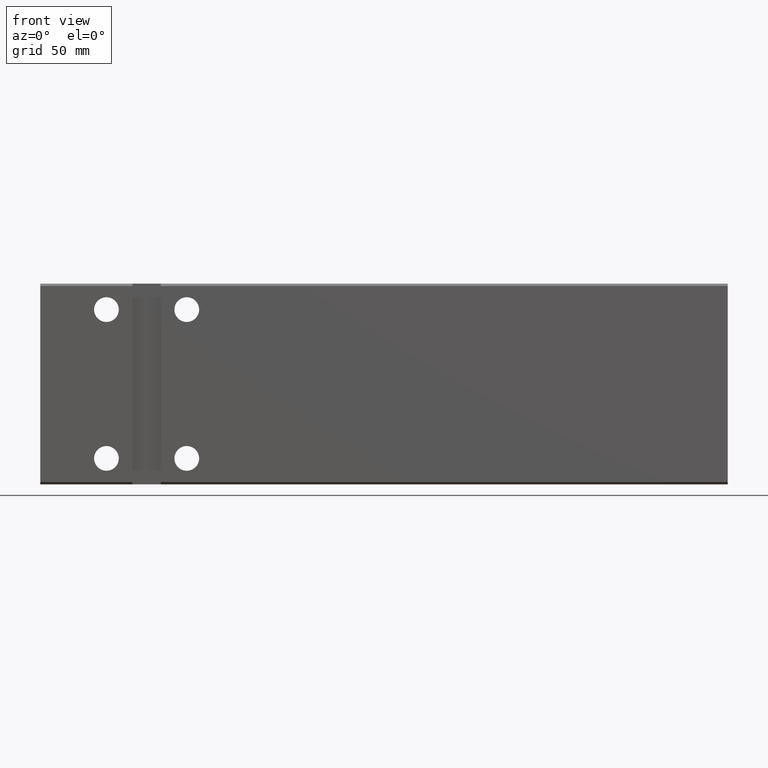
[diagram: clean part render]
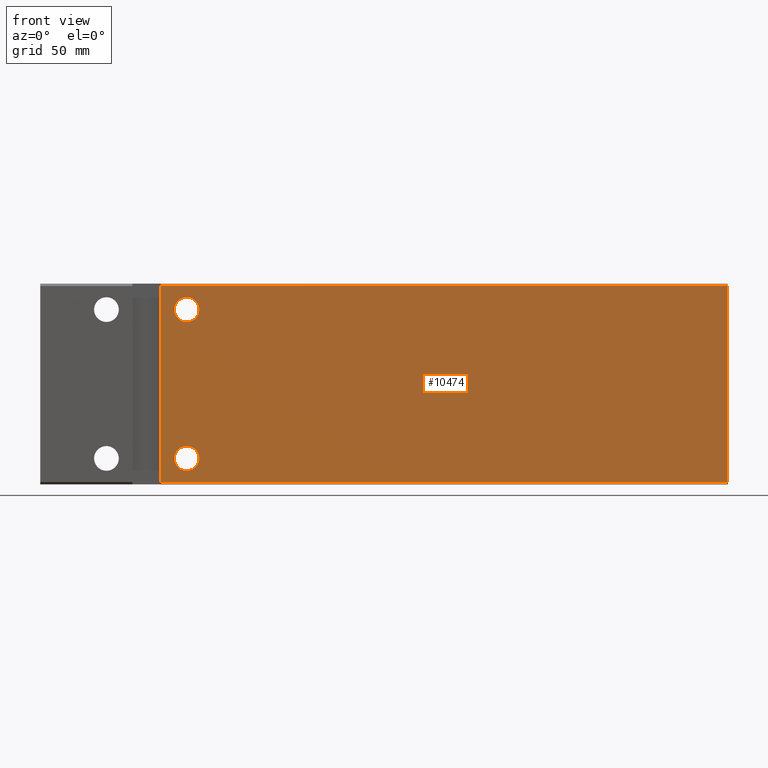
[diagram: same view with one face highlighted and labeled with its STEP entity id]
A machine part, front view. The second image highlights one B-rep face of the part: STEP entity #10474.
In plain terms, the highlighted planar face has unit normal (-0, 1, 0).
Its self-contained STEP definition (entity closure, byte-faithful):
#2074 = CARTESIAN_POINT ( 'NONE',  ( 62.00000000000000711, -31.50000000000000000, -31.50000000000000000 ) ) ;
#2233 = CARTESIAN_POINT ( 'NONE',  ( 291.0000000000000000, -31.50000000000000000, -41.50000000000000711 ) ) ;
#2432 = LINE ( 'NONE', #2233, #29851 ) ;
#2816 = DIRECTION ( 'NONE',  ( -3.265361837132813093E-16, -0.000000000000000000, 1.000000000000000000 ) ) ;
#3139 = AXIS2_PLACEMENT_3D ( 'NONE', #29336, #10279, #6345 ) ;
#3451 = DIRECTION ( 'NONE',  ( 0.000000000000000000, -1.000000000000000000, -0.000000000000000000 ) ) ;
#3910 = CARTESIAN_POINT ( 'NONE',  ( 291.0000000000000000, -31.50000000000000000, 41.49999999999999289 ) ) ;
#4350 = LINE ( 'NONE', #29410, #14008 ) ;
#4474 = VERTEX_POINT ( 'NONE', #18477 ) ;
#5000 = ORIENTED_EDGE ( 'NONE', *, *, #13221, .F. ) ;
#5068 = EDGE_LOOP ( 'NONE', ( #8071, #21541 ) ) ;
#5072 = AXIS2_PLACEMENT_3D ( 'NONE', #20670, #7627, #17162 ) ;
#5157 = EDGE_CURVE ( 'NONE', #4474, #20910, #24467, .T. ) ;
#5331 = VECTOR ( 'NONE', #29593, 1000.000000000000000 ) ;
#6340 = CARTESIAN_POINT ( 'NONE',  ( 291.0000000000000000, -31.50000000000000000, 41.49999999999999289 ) ) ;
#6345 = DIRECTION ( 'NONE',  ( 0.000000000000000000, -0.000000000000000000, 1.000000000000000000 ) ) ;
#7627 = DIRECTION ( 'NONE',  ( 0.000000000000000000, -1.000000000000000000, -0.000000000000000000 ) ) ;
#8071 = ORIENTED_EDGE ( 'NONE', *, *, #14726, .T. ) ;
#8681 = EDGE_CURVE ( 'NONE', #19785, #31767, #31180, .T. ) ;
#9042 = CIRCLE ( 'NONE', #5072, 5.250000000000004441 ) ;
#9093 = DIRECTION ( 'NONE',  ( -0.000000000000000000, 1.000000000000000000, 0.000000000000000000 ) ) ;
#9581 = EDGE_CURVE ( 'NONE', #20910, #4474, #9042, .T. ) ;
#10279 = DIRECTION ( 'NONE',  ( -0.000000000000000000, 1.000000000000000000, 0.000000000000000000 ) ) ;
#10474 = ADVANCED_FACE ( 'NONE', ( #34927, #35540, #19600 ), #25815, .F. ) ;
#12425 = DIRECTION ( 'NONE',  ( -0.000000000000000000, 1.000000000000000000, 0.000000000000000000 ) ) ;
#13221 = EDGE_CURVE ( 'NONE', #24454, #35407, #17167, .T. ) ;
#13431 = EDGE_CURVE ( 'NONE', #35407, #19785, #2432, .T. ) ;
#13847 = CARTESIAN_POINT ( 'NONE',  ( 62.00000000000000711, -31.50000000000000000, -36.75000000000000000 ) ) ;
#14008 = VECTOR ( 'NONE', #26513, 1000.000000000000000 ) ;
#14565 = VERTEX_POINT ( 'NONE', #35450 ) ;
#14726 = EDGE_CURVE ( 'NONE', #40172, #14565, #28514, .T. ) ;
#15104 = CARTESIAN_POINT ( 'NONE',  ( 51.00000000000000000, -31.50000000000000000, 41.49999999999999289 ) ) ;
#15268 = CARTESIAN_POINT ( 'NONE',  ( 62.00000000000000000, -31.50000000000000000, 31.50000000000000000 ) ) ;
#15480 = EDGE_CURVE ( 'NONE', #24454, #31767, #4350, .T. ) ;
#16009 = ORIENTED_EDGE ( 'NONE', *, *, #15480, .T. ) ;
#16685 = CARTESIAN_POINT ( 'NONE',  ( 291.0000000000000000, -31.50000000000000000, -41.50000000000000711 ) ) ;
#17162 = DIRECTION ( 'NONE',  ( 0.000000000000000000, 0.000000000000000000, 1.000000000000000000 ) ) ;
#17167 = LINE ( 'NONE', #3910, #5331 ) ;
#18218 = DIRECTION ( 'NONE',  ( 0.000000000000000000, 0.000000000000000000, 1.000000000000000000 ) ) ;
#18477 = CARTESIAN_POINT ( 'NONE',  ( 62.00000000000000000, -31.50000000000000000, 36.75000000000000711 ) ) ;
#18956 = VECTOR ( 'NONE', #2816, 1000.000000000000000 ) ;
#19072 = ORIENTED_EDGE ( 'NONE', *, *, #13431, .F. ) ;
#19600 = FACE_BOUND ( 'NONE', #20905, .T. ) ;
#19785 = VERTEX_POINT ( 'NONE', #33224 ) ;
#20670 = CARTESIAN_POINT ( 'NONE',  ( 62.00000000000000000, -31.50000000000000000, 31.50000000000000000 ) ) ;
#20905 = EDGE_LOOP ( 'NONE', ( #36545, #31874 ) ) ;
#20910 = VERTEX_POINT ( 'NONE', #24965 ) ;
#21541 = ORIENTED_EDGE ( 'NONE', *, *, #24907, .T. ) ;
#23980 = DIRECTION ( 'NONE',  ( -1.000000000000000000, -0.000000000000000000, -0.000000000000000000 ) ) ;
#24454 = VERTEX_POINT ( 'NONE', #6340 ) ;
#24467 = CIRCLE ( 'NONE', #29774, 5.250000000000004441 ) ;
#24642 = DIRECTION ( 'NONE',  ( 0.000000000000000000, 0.000000000000000000, 1.000000000000000000 ) ) ;
#24907 = EDGE_CURVE ( 'NONE', #14565, #40172, #33247, .T. ) ;
#24965 = CARTESIAN_POINT ( 'NONE',  ( 62.00000000000000000, -31.50000000000000000, 26.24999999999999645 ) ) ;
#25815 = PLANE ( 'NONE',  #3139 ) ;
#26513 = DIRECTION ( 'NONE',  ( -1.000000000000000000, -0.000000000000000000, -0.000000000000000000 ) ) ;
#28514 = CIRCLE ( 'NONE', #33803, 5.249999999999997335 ) ;
#29336 = CARTESIAN_POINT ( 'NONE',  ( 291.0000000000000000, -31.50000000000000000, 41.49999999999999289 ) ) ;
#29410 = CARTESIAN_POINT ( 'NONE',  ( 291.0000000000000000, -31.50000000000000000, 41.49999999999999289 ) ) ;
#29593 = DIRECTION ( 'NONE',  ( 0.000000000000000000, 0.000000000000000000, -1.000000000000000000 ) ) ;
#29774 = AXIS2_PLACEMENT_3D ( 'NONE', #15268, #3451, #31199 ) ;
#29851 = VECTOR ( 'NONE', #23980, 1000.000000000000000 ) ;
#30979 = CARTESIAN_POINT ( 'NONE',  ( 51.00000000000000000, -31.50000000000000000, 42.49999999999999289 ) ) ;
#31180 = LINE ( 'NONE', #30979, #18956 ) ;
#31199 = DIRECTION ( 'NONE',  ( 0.000000000000000000, 0.000000000000000000, 1.000000000000000000 ) ) ;
#31767 = VERTEX_POINT ( 'NONE', #15104 ) ;
#31874 = ORIENTED_EDGE ( 'NONE', *, *, #5157, .F. ) ;
#31945 = EDGE_LOOP ( 'NONE', ( #16009, #35668, #19072, #5000 ) ) ;
#33224 = CARTESIAN_POINT ( 'NONE',  ( 51.00000000000002132, -31.50000000000000000, -41.50000000000000711 ) ) ;
#33247 = CIRCLE ( 'NONE', #37203, 5.249999999999997335 ) ;
#33803 = AXIS2_PLACEMENT_3D ( 'NONE', #34991, #12425, #24642 ) ;
#34927 = FACE_BOUND ( 'NONE', #5068, .T. ) ;
#34991 = CARTESIAN_POINT ( 'NONE',  ( 62.00000000000000711, -31.50000000000000000, -31.50000000000000000 ) ) ;
#35407 = VERTEX_POINT ( 'NONE', #16685 ) ;
#35450 = CARTESIAN_POINT ( 'NONE',  ( 62.00000000000000711, -31.50000000000000000, -26.25000000000000355 ) ) ;
#35540 = FACE_OUTER_BOUND ( 'NONE', #31945, .T. ) ;
#35668 = ORIENTED_EDGE ( 'NONE', *, *, #8681, .F. ) ;
#36545 = ORIENTED_EDGE ( 'NONE', *, *, #9581, .F. ) ;
#37203 = AXIS2_PLACEMENT_3D ( 'NONE', #2074, #9093, #18218 ) ;
#40172 = VERTEX_POINT ( 'NONE', #13847 ) ;